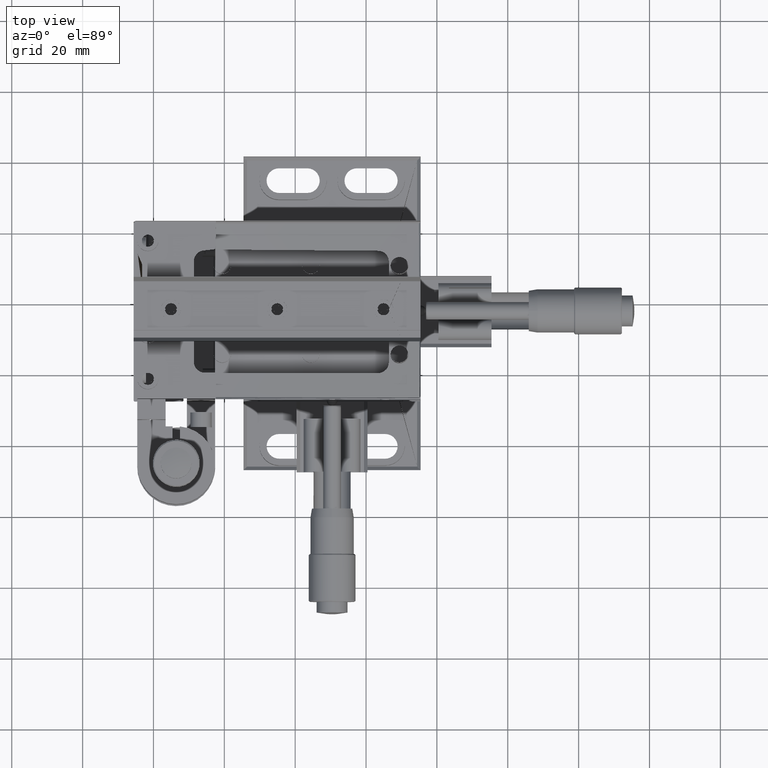
[diagram: clean part render]
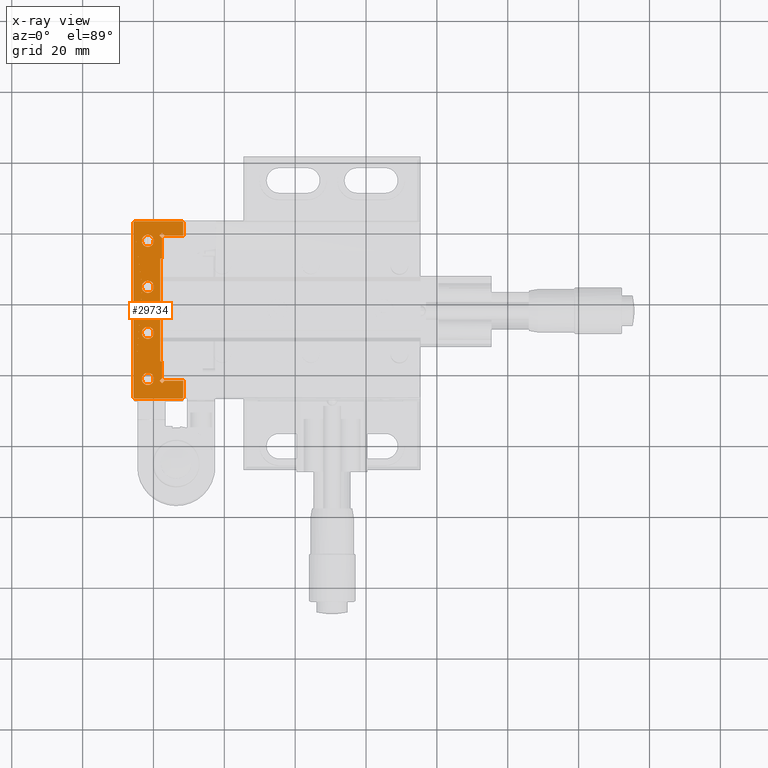
[diagram: x-ray — body ghosted, one internal face saturated and labeled with its STEP entity id]
A machine part, top view, then the same camera in x-ray: the body is ghosted and one INTERNAL B-rep face — a face not visible from any outside direction — is saturated and labeled: STEP entity #29734.
In plain terms, the highlighted face is a freeform B-spline surface patch.
Its self-contained STEP definition (entity closure, byte-faithful):
#48 = EDGE_CURVE ( 'NONE', #21936, #324, #6040, .T. ) ;
#93 = CARTESIAN_POINT ( 'NONE',  ( -40.19454005692469423, 4.996809397650840978, 36.82274179201690600 ) ) ;
#167 = CARTESIAN_POINT ( 'NONE',  ( -40.46406992888675092, -7.716246177610798007, 36.82274179201691311 ) ) ;
#223 = CARTESIAN_POINT ( 'NONE',  ( -40.30543664666586778, 2.876152325772507012, 36.82274179201689890 ) ) ;
#324 = VERTEX_POINT ( 'NONE', #31495 ) ;
#326 = CARTESIAN_POINT ( 'NONE',  ( -43.18076767883655265, -21.99928513604540115, 36.82274179201690600 ) ) ;
#349 = CARTESIAN_POINT ( 'NONE',  ( -40.30543664816160998, 15.87615232408935739, 36.82274179201690600 ) ) ;
#392 = CARTESIAN_POINT ( 'NONE',  ( -43.17501037392970176, -8.406309195851523697, 36.82274179201690600 ) ) ;
#399 = CARTESIAN_POINT ( 'NONE',  ( -37.34506541844488936, -22.97068709265689535, 36.82274179201690600 ) ) ;
#456 = CARTESIAN_POINT ( 'NONE',  ( -42.02441698899207267, 2.358397999597445338, 36.82274179201689890 ) ) ;
#459 = CARTESIAN_POINT ( 'NONE',  ( -39.88076734143195523, -22.11106267147139448, 36.82274179201690600 ) ) ;
#579 = CARTESIAN_POINT ( 'NONE',  ( -42.18676659028807308, 15.41145335363422575, 36.82274179201689890 ) ) ;
#618 = CARTESIAN_POINT ( 'NONE',  ( -41.29971903499627217, -7.315715178769266025, 36.82274179201691311 ) ) ;
#677 = CARTESIAN_POINT ( 'NONE',  ( -42.33901528756882016, 2.475159843126623738, 36.82274179201689890 ) ) ;
#802 = CARTESIAN_POINT ( 'NONE',  ( -42.69746543167129005, 15.71767077393287515, 36.82274179201690600 ) ) ;
#912 = CARTESIAN_POINT ( 'NONE',  ( -40.30266377896044361, -20.87245630221135073, 36.82274179201690600 ) ) ;
#1053 = CARTESIAN_POINT ( 'NONE',  ( -41.02977556036437790, -7.389987427549645105, 36.82274179201690600 ) ) ;
#1083 = CARTESIAN_POINT ( 'NONE',  ( -43.03000638582862791, 17.90267991985624718, 36.82274179201690600 ) ) ;
#1129 = CARTESIAN_POINT ( 'NONE',  ( -40.97476877140953633, -20.41002875829755325, 36.82274179201690600 ) ) ;
#1159 = B_SPLINE_CURVE_WITH_KNOTS ( 'NONE', 1,
 ( #40691, #30317 ),
 .UNSPECIFIED., .F., .F.,
 ( 2, 2 ),
 ( 0.000000000000000000, 1.000000000000000000 ),
 .UNSPECIFIED. ) ;
#1286 = ORIENTED_EDGE ( 'NONE', *, *, #10571, .T. ) ;
#1311 = CARTESIAN_POINT ( 'NONE',  ( -42.02781954161246603, 18.65664888257089515, 36.82274179201689890 ) ) ;
#1493 = VERTEX_POINT ( 'NONE', #40681 ) ;
#1527 = CARTESIAN_POINT ( 'NONE',  ( -41.29971903273891343, 18.68428482084535602, 36.82274179201689890 ) ) ;
#1564 = CARTESIAN_POINT ( 'NONE',  ( -45.08076767884040237, 22.50071742813409870, 36.82274179201690600 ) ) ;
#1572 = CARTESIAN_POINT ( 'NONE',  ( -42.69922335455444085, -20.71425978122463363, 36.82274179201689890 ) ) ;
#1743 = CARTESIAN_POINT ( 'NONE',  ( -42.43374646706872255, 18.47249484585060486, 36.82274179201690600 ) ) ;
#1792 = EDGE_LOOP ( 'NONE', ( #34054, #33832 ) ) ;
#1964 = CARTESIAN_POINT ( 'NONE',  ( -42.69922335191412088, 18.28574022105116370, 36.82274179201689890 ) ) ;
#2077 = CARTESIAN_POINT ( 'NONE',  ( -42.02441698900330636, -10.64160200039342108, 36.82274179201690600 ) ) ;
#2123 = CARTESIAN_POINT ( 'NONE',  ( -43.13197152199607842, 16.30297633096285637, 36.82274179201690600 ) ) ;
#2180 = CARTESIAN_POINT ( 'NONE',  ( -38.08076767884040237, -16.99928257186589775, 36.82274179201690600 ) ) ;
#2342 = CARTESIAN_POINT ( 'NONE',  ( -45.58076767884040237, 22.00071742813410225, 36.82274179201690600 ) ) ;
#2371 = CARTESIAN_POINT ( 'NONE',  ( -42.28994030096620804, 5.546757462433775210, 36.82274179201690600 ) ) ;
#2391 = CARTESIAN_POINT ( 'NONE',  ( -43.23825521565764518, 3.561430361331973327, 36.82274179201690600 ) ) ;
#2629 = CARTESIAN_POINT ( 'NONE',  ( -45.58076767884040237, 22.00071742813410225, 36.82274179201690600 ) ) ;
#2665 = ORIENTED_EDGE ( 'NONE', *, *, #28712, .T. ) ;
#2962 = CARTESIAN_POINT ( 'NONE',  ( -43.13197152105254872, -9.697023671158383706, 36.82274179201689890 ) ) ;
#3028 = CARTESIAN_POINT ( 'NONE',  ( -42.57314689484016412, 5.388900595007707572, 36.82274179201690600 ) ) ;
#3072 = B_SPLINE_CURVE_WITH_KNOTS ( 'NONE', 3,
 ( #8402, #25863, #5018, #19295 ),
 .UNSPECIFIED., .F., .F.,
 ( 4, 4 ),
 ( 0.000000000000000000, 1.000000000000000000 ),
 .UNSPECIFIED. ) ;
#3128 = VERTEX_POINT ( 'NONE', #38191 ) ;
#3159 = CARTESIAN_POINT ( 'NONE',  ( -41.13371581205726102, -23.65522428773503094, 36.82274179201690600 ) ) ;
#3189 = VERTEX_POINT ( 'NONE', #24405 ) ;
#3386 = CARTESIAN_POINT ( 'NONE',  ( -40.24950763000487797, -23.05954031638875179, 36.82274179201690600 ) ) ;
#3460 = CARTESIAN_POINT ( 'NONE',  ( -41.02977556142179338, -20.38998742718046842, 36.82274179201690600 ) ) ;
#3514 = CARTESIAN_POINT ( 'NONE',  ( -40.82368338836757005, 15.47754827673982447, 36.82274179201690600 ) ) ;
#3607 = CARTESIAN_POINT ( 'NONE',  ( -39.93656571152008183, 3.564376954244634188, 36.82274179201689890 ) ) ;
#3635 = B_SPLINE_CURVE_WITH_KNOTS ( 'NONE', 3,
 ( #42590, #39182, #35353, #5592 ),
 .UNSPECIFIED., .F., .F.,
 ( 4, 4 ),
 ( 0.000000000000000000, 1.000000000000000000 ),
 .UNSPECIFIED. ) ;
#3737 = CARTESIAN_POINT ( 'NONE',  ( -40.24950763211557359, 15.94045968096674137, 36.82274179201690600 ) ) ;
#3777 = CARTESIAN_POINT ( 'NONE',  ( -41.80814491364372287, -7.299356975915101131, 36.82274179201690600 ) ) ;
#3785 = CARTESIAN_POINT ( 'NONE',  ( -37.58076767884040237, -23.20638935305240125, 36.82274179201690600 ) ) ;
#3837 = CARTESIAN_POINT ( 'NONE',  ( -40.13152896942773395, 3.098744677808066506, 36.82274179201689890 ) ) ;
#3954 = CARTESIAN_POINT ( 'NONE',  ( -42.13175980019921241, 15.39141202233396477, 36.82274179201689890 ) ) ;
#3993 = EDGE_CURVE ( 'NONE', #29423, #11852, #25124, .T. ) ;
#3998 = CARTESIAN_POINT ( 'NONE',  ( -41.46707905799048177, -7.299245369841299791, 36.82274179201690600 ) ) ;
#4064 = CARTESIAN_POINT ( 'NONE',  ( -40.72778888763272676, 2.528929749662430115, 36.82274179201690600 ) ) ;
#4181 = CARTESIAN_POINT ( 'NONE',  ( -42.48261919083719107, 15.55207123558230720, 36.82274179201690600 ) ) ;
#4223 = CARTESIAN_POINT ( 'NONE',  ( -40.19454005688467646, -8.003190602410615639, 36.82274179201690600 ) ) ;
#4407 = CARTESIAN_POINT ( 'NONE',  ( -42.02441699123473029, 15.35839800019816082, 36.82274179201690600 ) ) ;
#4473 = CARTESIAN_POINT ( 'NONE',  ( -40.97476876816651270, 18.58997124045624361, 36.82274179201689890 ) ) ;
#4544 = B_SPLINE_CURVE_WITH_KNOTS ( 'NONE', 1,
 ( #8013, #4639 ),
 .UNSPECIFIED., .F., .F.,
 ( 2, 2 ),
 ( 0.000000000000000000, 1.000000000000000000 ),
 .UNSPECIFIED. ) ;
#4639 = CARTESIAN_POINT ( 'NONE',  ( -31.58076767884039526, 18.50071742813410225, 36.82274179201690600 ) ) ;
#4669 = CARTESIAN_POINT ( 'NONE',  ( -43.22496964541574016, -8.562952357654745938, 36.82274179201689890 ) ) ;
#4704 = CARTESIAN_POINT ( 'NONE',  ( -43.28076801579548771, 17.11248727201877529, 36.82274179201691311 ) ) ;
#4804 = ORIENTED_EDGE ( 'NONE', *, *, #35595, .F. ) ;
#4923 = CARTESIAN_POINT ( 'NONE',  ( -43.26482584070880222, 17.27707414411844411, 36.82274179201690600 ) ) ;
#4965 = CARTESIAN_POINT ( 'NONE',  ( -43.22496964571080014, -21.56295235871922600, 36.82274179201689890 ) ) ;
#5018 = CARTESIAN_POINT ( 'NONE',  ( -37.81646993923594380, -22.97068709265689535, 36.82274179201690600 ) ) ;
#5112 = CARTESIAN_POINT ( 'NONE',  ( -43.18076767883655265, 4.000714864529309800, 36.82274179201690600 ) ) ;
#5138 = CARTESIAN_POINT ( 'NONE',  ( -43.17501037313120094, 17.59369080629983983, 36.82274179201690600 ) ) ;
#5341 = CARTESIAN_POINT ( 'NONE',  ( -43.05388682593653726, 3.149815466933532981, 36.82274179201689179 ) ) ;
#5367 = CARTESIAN_POINT ( 'NONE',  ( -42.79688486403963310, 18.18890317167046078, 36.82274179201690600 ) ) ;
#5378 = CARTESIAN_POINT ( 'NONE',  ( -37.58076767884040237, -16.99928257186589775, 36.82274179201694864 ) ) ;
#5479 = CARTESIAN_POINT ( 'NONE',  ( -43.18076767883655265, -8.999285135470689312, 36.82274179201690600 ) ) ;
#5525 = CARTESIAN_POINT ( 'NONE',  ( -43.28076835558033508, 16.77677875208320657, 36.82274179201690600 ) ) ;
#5592 = CARTESIAN_POINT ( 'NONE',  ( -45.58076767884040237, -27.29928257186589846, 36.82274179201690600 ) ) ;
#5771 = CARTESIAN_POINT ( 'NONE',  ( -41.46707905798351135, 5.700754630158691327, 36.82274179201691311 ) ) ;
#5922 = CARTESIAN_POINT ( 'NONE',  ( -41.69445629984662105, -10.69933003634922031, 36.82274179201691311 ) ) ;
#6040 = B_SPLINE_CURVE_WITH_KNOTS ( 'NONE', 1,
 ( #2342, #29998 ),
 .UNSPECIFIED., .F., .F.,
 ( 2, 2 ),
 ( 0.9939516129032260894, 1.000000000000000000 ),
 .UNSPECIFIED. ) ;
#6061 = ORIENTED_EDGE ( 'NONE', *, *, #35967, .T. ) ;
#6097 = CARTESIAN_POINT ( 'NONE',  ( -36.87366089765389887, 18.50071742813410225, 36.82274179201690600 ) ) ;
#6149 = CARTESIAN_POINT ( 'NONE',  ( -40.05187133273120992, -9.751466191042567289, 36.82274179201690600 ) ) ;
#6375 = CARTESIAN_POINT ( 'NONE',  ( -40.46231200283220630, -10.28431562472484728, 36.82274179201689890 ) ) ;
#6490 = EDGE_CURVE ( 'NONE', #37728, #36287, #11409, .T. ) ;
#6655 = CARTESIAN_POINT ( 'NONE',  ( -40.67891616981588498, 5.449353360060719353, 36.82274179201690600 ) ) ;
#6790 = CARTESIAN_POINT ( 'NONE',  ( -42.13175979692896078, -23.60858797878658777, 36.82274179201689890 ) ) ;
#6794 = CARTESIAN_POINT ( 'NONE',  ( -45.38076767884039953, 22.50071742813409870, 36.82274179201690600 ) ) ;
#6821 = CARTESIAN_POINT ( 'NONE',  ( -37.58076767884040237, 12.00071742813409870, 36.82274179201690600 ) ) ;
#6913 = B_SPLINE_CURVE_WITH_KNOTS ( 'NONE', 1,
 ( #43721, #40076 ),
 .UNSPECIFIED., .F., .F.,
 ( 2, 2 ),
 ( 0.9779411764705889798, 1.000000000000000000 ),
 .UNSPECIFIED. ) ;
#7174 = CARTESIAN_POINT ( 'NONE',  ( -42.57314689476735481, -7.611099404973037608, 36.82274179201690600 ) ) ;
#7236 = CARTESIAN_POINT ( 'NONE',  ( -40.05187133223323315, -22.75146619002869386, 36.82274179201689890 ) ) ;
#7355 = CARTESIAN_POINT ( 'NONE',  ( -43.18076767883655265, -8.999285135470689312, 36.82274179201690600 ) ) ;
#7398 = CARTESIAN_POINT ( 'NONE',  ( -43.19308462145964000, -8.457328550999619665, 36.82274179201690600 ) ) ;
#7405 = VERTEX_POINT ( 'NONE', #1564 ) ;
#7406 = CARTESIAN_POINT ( 'NONE',  ( -37.58076767884040237, 17.79361064694759875, 36.82274179201690600 ) ) ;
#7573 = CARTESIAN_POINT ( 'NONE',  ( -40.87159505791517233, 15.45466713081073706, 36.82274179201690600 ) ) ;
#7615 = ORIENTED_EDGE ( 'NONE', *, *, #32928, .T. ) ;
#7692 = CARTESIAN_POINT ( 'NONE',  ( -43.28076767883269582, -21.99928770022489743, 36.82274179201690600 ) ) ;
#7718 = ORIENTED_EDGE ( 'NONE', *, *, #40855, .F. ) ;
#7791 = CARTESIAN_POINT ( 'NONE',  ( -41.13371581552155476, 15.34477571135149354, 36.82274179201690600 ) ) ;
#8013 = CARTESIAN_POINT ( 'NONE',  ( -31.58076767884039526, 22.30071742813409941, 36.82274179201690600 ) ) ;
#8043 = CARTESIAN_POINT ( 'NONE',  ( -42.43374646907859926, -7.527505155319134111, 36.82274179201690600 ) ) ;
#8296 = CARTESIAN_POINT ( 'NONE',  ( -43.19308462072688570, 17.54267145118662796, 36.82274179201690600 ) ) ;
#8402 = CARTESIAN_POINT ( 'NONE',  ( -38.28787446002699824, -22.49928257186589775, 36.82274179201694864 ) ) ;
#8501 = EDGE_CURVE ( 'NONE', #3128, #15025, #18224, .T. ) ;
#8520 = CARTESIAN_POINT ( 'NONE',  ( -40.67891616786999265, 18.44935335886450289, 36.82274179201690600 ) ) ;
#8562 = CARTESIAN_POINT ( 'NONE',  ( -41.46707905910478331, -20.29924536976831106, 36.82274179201690600 ) ) ;
#8723 = CARTESIAN_POINT ( 'NONE',  ( -43.13197152105243504, 3.302976328846476406, 36.82274179201690600 ) ) ;
#8739 = ORIENTED_EDGE ( 'NONE', *, *, #9813, .T. ) ;
#8749 = CARTESIAN_POINT ( 'NONE',  ( -41.02977555819784072, 18.61001257170264722, 36.82274179201690600 ) ) ;
#8856 = CARTESIAN_POINT ( 'NONE',  ( -40.87159505581427510, -10.54533286822725913, 36.82274179201690600 ) ) ;
#8872 = CARTESIAN_POINT ( 'NONE',  ( -38.28787446002699824, 18.50071742813410225, 36.82274179201690600 ) ) ;
#8941 = VERTEX_POINT ( 'NONE', #43049 ) ;
#9104 = CARTESIAN_POINT ( 'NONE',  ( -31.58076767884039526, -27.29928257186589846, 36.82274179201690600 ) ) ;
#9143 = CARTESIAN_POINT ( 'NONE',  ( -41.29971903498418584, 5.684284821230718876, 36.82274179201690600 ) ) ;
#9187 = CARTESIAN_POINT ( 'NONE',  ( -45.08076767884040237, -27.49928257186589775, 36.82274179201690600 ) ) ;
#9222 = ORIENTED_EDGE ( 'NONE', *, *, #11362, .T. ) ;
#9301 = CARTESIAN_POINT ( 'NONE',  ( -39.98076767884430183, 4.000714862230425162, 36.82274179201690600 ) ) ;
#9308 = CARTESIAN_POINT ( 'NONE',  ( -43.10709624249707161, -9.750169693812633653, 36.82274179201689890 ) ) ;
#9370 = CARTESIAN_POINT ( 'NONE',  ( -40.97476877031925113, 5.589971241282266412, 36.82274179201690600 ) ) ;
#9432 = B_SPLINE_CURVE_WITH_KNOTS ( 'NONE', 1,
 ( #27488, #23406 ),
 .UNSPECIFIED., .F., .F.,
 ( 2, 2 ),
 ( 0.006048387096774160421, 0.9939516129032260894 ),
 .UNSPECIFIED. ) ;
#9471 = B_SPLINE_CURVE_WITH_KNOTS ( 'NONE', 1,
 ( #30295, #10312 ),
 .UNSPECIFIED., .F., .F.,
 ( 2, 2 ),
 ( 0.000000000000000000, 1.000000000000000000 ),
 .UNSPECIFIED. ) ;
#9523 = CARTESIAN_POINT ( 'NONE',  ( -42.73659306122866042, -10.24720942165079052, 36.82274179201690600 ) ) ;
#9746 = CARTESIAN_POINT ( 'NONE',  ( -40.72778888759541616, -10.47107025032269689, 36.82274179201689890 ) ) ;
#9813 = EDGE_CURVE ( 'NONE', #7405, #8941, #29567, .T. ) ;
#9819 = CARTESIAN_POINT ( 'NONE',  ( -43.28076801594657042, 4.112487269746423202, 36.82274179201690600 ) ) ;
#9943 = CARTESIAN_POINT ( 'NONE',  ( -40.58838846082009155, -23.38747599975391012, 36.82274179201690600 ) ) ;
#10036 = B_SPLINE_CURVE_WITH_KNOTS ( 'NONE', 3,
 ( #3785, #399, #10785, #21672 ),
 .UNSPECIFIED., .F., .F.,
 ( 4, 4 ),
 ( 0.000000000000000000, 1.000000000000000000 ),
 .UNSPECIFIED. ) ;
#10120 = B_SPLINE_CURVE_WITH_KNOTS ( 'NONE', 3,
 ( #16520, #30385, #41220, #6794 ),
 .UNSPECIFIED., .F., .F.,
 ( 4, 4 ),
 ( 0.000000000000000000, 1.000000000000000000 ),
 .UNSPECIFIED. ) ;
#10221 = CARTESIAN_POINT ( 'NONE',  ( -45.58076767884040237, -26.99928257186589775, 36.82274179201690600 ) ) ;
#10302 = EDGE_CURVE ( 'NONE', #28309, #16935, #32753, .T. ) ;
#10312 = CARTESIAN_POINT ( 'NONE',  ( -31.58076767884039526, -22.49928257186589775, 36.82274179201690600 ) ) ;
#10333 = VERTEX_POINT ( 'NONE', #32313 ) ;
#10395 = CARTESIAN_POINT ( 'NONE',  ( -39.89670951589095438, -22.27564954384733298, 36.82274179201690600 ) ) ;
#10466 = ORIENTED_EDGE ( 'NONE', *, *, #24173, .T. ) ;
#10517 = CARTESIAN_POINT ( 'NONE',  ( -39.88076734165864679, 16.88893732511125378, 36.82274179201690600 ) ) ;
#10547 = VERTEX_POINT ( 'NONE', #21397 ) ;
#10571 = EDGE_CURVE ( 'NONE', #25780, #44548, #42985, .T. ) ;
#10618 = CARTESIAN_POINT ( 'NONE',  ( -40.87159505582287267, 2.454667131769446620, 36.82274179201689890 ) ) ;
#10646 = FACE_BOUND ( 'NONE', #17249, .T. ) ;
#10779 = CARTESIAN_POINT ( 'NONE',  ( -40.42494229766007408, -7.751365983414896910, 36.82274179201690600 ) ) ;
#10785 = CARTESIAN_POINT ( 'NONE',  ( -37.10936315804936214, -22.73498483226139655, 36.82274179201690600 ) ) ;
#10837 = CARTESIAN_POINT ( 'NONE',  ( -39.98652498281136047, 3.407733792170717813, 36.82274179201690600 ) ) ;
#10840 = CARTESIAN_POINT ( 'NONE',  ( -39.93656571122501475, -22.43562304465515922, 36.82274179201689179 ) ) ;
#10939 = CARTESIAN_POINT ( 'NONE',  ( -40.30266377820515089, 5.127543696941629925, 36.82274179201689890 ) ) ;
#11046 = CARTESIAN_POINT ( 'NONE',  ( -38.05217219963147102, 18.26501516773859635, 36.82274179201690600 ) ) ;
#11085 = CARTESIAN_POINT ( 'NONE',  ( -40.67891617074077715, -20.55064663936571989, 36.82274179201690600 ) ) ;
#11188 = CARTESIAN_POINT ( 'NONE',  ( -40.36465049243884096, 15.81252142336836819, 36.82274179201690600 ) ) ;
#11305 = CARTESIAN_POINT ( 'NONE',  ( -40.05443911675418889, -21.24840570920083849, 36.82274179201690600 ) ) ;
#11331 = B_SPLINE_CURVE_WITH_KNOTS ( 'NONE', 1,
 ( #2180, #26874 ),
 .UNSPECIFIED., .F., .F.,
 ( 2, 2 ),
 ( 0.000000000000000000, 1.000000000000000000 ),
 .UNSPECIFIED. ) ;
#11362 = EDGE_CURVE ( 'NONE', #10547, #43245, #4544, .T. ) ;
#11409 = B_SPLINE_CURVE_WITH_KNOTS ( 'NONE', 3,
 ( #30381, #459, #10395, #10840, #20398, #14239, #7236, #37569, #3386, #13789, #13564, #24693, #21287, #9943, #38033, #23789, #24470, #3159, #16967, #28101, #14018, #38488, #6790, #17647, #13341, #17194, #20846, #31050, #21068, #41907, #27649, #35107, #24241, #34434, #27191, #41449, #17420 ),
 .UNSPECIFIED., .F., .F.,
 ( 4, 1, 2, 2, 1, 1, 2, 2, 1, 2, 2, 2, 1, 2, 2, 1, 2, 2, 1, 2, 2, 4 ),
 ( 0.000000000000000000, 0.06249999999999428235, 0.09374999999999200639, 0.1249999999999897304, 0.1874999999999869549, 0.2187499999999863720, 0.2343749999999848455, 0.2499999999999833467, 0.3124999999999786837, 0.3437499999999768518, 0.3749999999999751310, 0.4999999999999777955, 0.5624999999999810152, 0.5937499999999825695, 0.6249999999999840128, 0.6874999999999875655, 0.7187499999999905631, 0.7499999999999934497, 0.8124999999999978906, 0.8437499999999983347, 0.8749999999999986677, 1.000000000000000000 ),
 .UNSPECIFIED. ) ;
#11529 = CARTESIAN_POINT ( 'NONE',  ( -39.92328014310441375, -21.56000576363398125, 36.82274179201690600 ) ) ;
#11852 = VERTEX_POINT ( 'NONE', #40508 ) ;
#11970 = CARTESIAN_POINT ( 'NONE',  ( -42.57314689574013045, -20.61109940563573772, 36.82274179201690600 ) ) ;
#12053 = EDGE_CURVE ( 'NONE', #37659, #3189, #30966, .T. ) ;
#12124 = CARTESIAN_POINT ( 'NONE',  ( -42.69746542996209371, 2.717670772428432358, 36.82274179201689179 ) ) ;
#12143 = CARTESIAN_POINT ( 'NONE',  ( -45.38076767884039953, -27.49928257186589775, 36.82274179201690600 ) ) ;
#12148 = CARTESIAN_POINT ( 'NONE',  ( -42.57314689286516085, 18.38890059638965369, 36.82274179201690600 ) ) ;
#12260 = CARTESIAN_POINT ( 'NONE',  ( -39.98652498281634138, -9.592266207842596870, 36.82274179201690600 ) ) ;
#12480 = CARTESIAN_POINT ( 'NONE',  ( -40.36465049082983825, -10.18747857498560450, 36.82274179201689890 ) ) ;
#12510 = CARTESIAN_POINT ( 'NONE',  ( -36.87366089765389887, 18.50071742813410225, 36.82274179201690600 ) ) ;
#12547 = CARTESIAN_POINT ( 'NONE',  ( -42.33785197048018034, 5.523876316474708226, 36.82274179201690600 ) ) ;
#12907 = CARTESIAN_POINT ( 'NONE',  ( -43.18076767883655265, 17.00071486567874857, 36.82274179201690600 ) ) ;
#13147 = CARTESIAN_POINT ( 'NONE',  ( -39.88076734150755698, -9.111062672614931301, 36.82274179201689179 ) ) ;
#13192 = EDGE_CURVE ( 'NONE', #19203, #44336, #42168, .T. ) ;
#13216 = ORIENTED_EDGE ( 'NONE', *, *, #19818, .T. ) ;
#13236 = CARTESIAN_POINT ( 'NONE',  ( -38.08076767884040237, 12.00071742813409870, 36.82274179201690600 ) ) ;
#13341 = CARTESIAN_POINT ( 'NONE',  ( -42.33901528654119772, -23.52484015737798728, 36.82274179201690600 ) ) ;
#13430 = EDGE_CURVE ( 'NONE', #11852, #29423, #20515, .T. ) ;
#13439 = CARTESIAN_POINT ( 'NONE',  ( -43.26482584108239848, 4.277074141887577952, 36.82274179201689890 ) ) ;
#13564 = CARTESIAN_POINT ( 'NONE',  ( -40.34391526373725867, -23.16593500699836028, 36.82274179201690600 ) ) ;
#13769 = CARTESIAN_POINT ( 'NONE',  ( -37.58076767884040237, 17.79361064694759875, 36.82274179201690600 ) ) ;
#13783 = CARTESIAN_POINT ( 'NONE',  ( -40.24950763072067872, 2.940459682702496913, 36.82274179201690600 ) ) ;
#13789 = CARTESIAN_POINT ( 'NONE',  ( -40.30543664590615549, -23.12384767335962721, 36.82274179201689890 ) ) ;
#13793 = CARTESIAN_POINT ( 'NONE',  ( -39.98076767884430183, -21.99928513719485323, 36.82274179201690600 ) ) ;
#13879 = CARTESIAN_POINT ( 'NONE',  ( -40.54827946565749386, 5.352634617640788406, 36.82274179201690600 ) ) ;
#13956 = CARTESIAN_POINT ( 'NONE',  ( -40.54827946563538177, -7.647365382364641029, 36.82274179201690600 ) ) ;
#14015 = CARTESIAN_POINT ( 'NONE',  ( -40.58838846184183069, 2.612523999505222516, 36.82274179201690600 ) ) ;
#14018 = CARTESIAN_POINT ( 'NONE',  ( -41.86181632192365498, -23.68286022757990139, 36.82274179201690600 ) ) ;
#14130 = EDGE_CURVE ( 'NONE', #8941, #10547, #40083, .T. ) ;
#14135 = CARTESIAN_POINT ( 'NONE',  ( -40.58838846365538444, 15.61252399819315251, 36.82274179201689890 ) ) ;
#14157 = ORIENTED_EDGE ( 'NONE', *, *, #10302, .F. ) ;
#14178 = CARTESIAN_POINT ( 'NONE',  ( -43.10966402384880070, -8.247109212930498146, 36.82274179201689890 ) ) ;
#14236 = CARTESIAN_POINT ( 'NONE',  ( -42.13175979800909232, 2.391412021588351422, 36.82274179201690600 ) ) ;
#14239 = CARTESIAN_POINT ( 'NONE',  ( -39.98652498240998909, -22.59226620675457298, 36.82274179201690600 ) ) ;
#14397 = CARTESIAN_POINT ( 'NONE',  ( -42.79688486564278094, -7.811096829971092781, 36.82274179201690600 ) ) ;
#14616 = CARTESIAN_POINT ( 'NONE',  ( -39.92328014280739978, -8.560005764796267513, 36.82274179201689890 ) ) ;
#14666 = ORIENTED_EDGE ( 'NONE', *, *, #38569, .T. ) ;
#14690 = CARTESIAN_POINT ( 'NONE',  ( -40.19454005758651505, -21.00319060144202155, 36.82274179201690600 ) ) ;
#14865 = CARTESIAN_POINT ( 'NONE',  ( -39.98076767884430183, 17.00071486108099705, 36.82274179201690600 ) ) ;
#15012 = CARTESIAN_POINT ( 'NONE',  ( -37.58076767884040237, -21.79217579067930188, 36.82274179201694864 ) ) ;
#15025 = VERTEX_POINT ( 'NONE', #8872 ) ;
#15063 = CARTESIAN_POINT ( 'NONE',  ( -37.58076767884040237, -23.20638935305240125, 36.82274179201690600 ) ) ;
#15186 = CARTESIAN_POINT ( 'NONE',  ( -31.58076767884039526, 18.50071742813410225, 36.82274179201690600 ) ) ;
#15200 = B_SPLINE_CURVE_WITH_KNOTS ( 'NONE', 1,
 ( #42297, #32098 ),
 .UNSPECIFIED., .F., .F.,
 ( 2, 2 ),
 ( 0.000000000000000000, 1.000000000000000000 ),
 .UNSPECIFIED. ) ;
#15279 = CARTESIAN_POINT ( 'NONE',  ( -42.73659306122271317, 2.752790578329899596, 36.82274179201689890 ) ) ;
#15308 = CARTESIAN_POINT ( 'NONE',  ( -41.13711836704496960, 18.64302659375138660, 36.82274179201690600 ) ) ;
#15323 = CARTESIAN_POINT ( 'NONE',  ( -31.58076767884039526, -27.29928257186589846, 36.82274179201690600 ) ) ;
#15354 = CARTESIAN_POINT ( 'NONE',  ( -43.19308462182611663, -21.45732855205968193, 36.82274179201689890 ) ) ;
#15461 = CARTESIAN_POINT ( 'NONE',  ( -43.23825521625183654, 16.56143036349874720, 36.82274179201690600 ) ) ;
#15486 = ORIENTED_EDGE ( 'NONE', *, *, #19449, .T. ) ;
#15504 = CARTESIAN_POINT ( 'NONE',  ( -43.10709624250711158, 3.249830306220859555, 36.82274179201689890 ) ) ;
#15529 = CARTESIAN_POINT ( 'NONE',  ( -41.80814491132290556, 18.70064302439847381, 36.82274179201690600 ) ) ;
#15595 = CARTESIAN_POINT ( 'NONE',  ( -31.78076767884040166, 22.50071742813409870, 36.82274179201690600 ) ) ;
#15749 = CARTESIAN_POINT ( 'NONE',  ( -40.19454005560141496, 17.99680939578892946, 36.82274179201689890 ) ) ;
#15770 = B_SPLINE_CURVE_WITH_KNOTS ( 'NONE', 1,
 ( #41684, #27651 ),
 .UNSPECIFIED., .F., .F.,
 ( 2, 2 ),
 ( 0.000000000000000000, 0.006048387096774160421 ),
 .UNSPECIFIED. ) ;
#15850 = CARTESIAN_POINT ( 'NONE',  ( -38.28787446002699824, -22.49928257186589775, 36.82274179201694864 ) ) ;
#15933 = CARTESIAN_POINT ( 'NONE',  ( -43.17501037393056151, 4.593690804163490959, 36.82274179201690600 ) ) ;
#15950 = B_SPLINE_CURVE_WITH_KNOTS ( 'NONE', 1,
 ( #32576, #15323 ),
 .UNSPECIFIED., .F., .F.,
 ( 2, 2 ),
 ( 0.000000000000000000, 1.000000000000000000 ),
 .UNSPECIFIED. ) ;
#16196 = ORIENTED_EDGE ( 'NONE', *, *, #37654, .T. ) ;
#16307 = CARTESIAN_POINT ( 'NONE',  ( -39.88076767884820839, -8.999287703673251926, 36.82274179201690600 ) ) ;
#16378 = CARTESIAN_POINT ( 'NONE',  ( -43.22496964541574016, 4.437047642391142688, 36.82274179201689890 ) ) ;
#16520 = CARTESIAN_POINT ( 'NONE',  ( -45.58076767884040237, 22.30071742813409941, 36.82274179201690600 ) ) ;
#16740 = EDGE_CURVE ( 'NONE', #7405, #33706, #6913, .T. ) ;
#16935 = VERTEX_POINT ( 'NONE', #23261 ) ;
#16967 = CARTESIAN_POINT ( 'NONE',  ( -41.35339044257314356, -23.69921843012262386, 36.82274179201689890 ) ) ;
#17189 = CARTESIAN_POINT ( 'NONE',  ( -39.89670951607784843, 3.724350455028668794, 36.82274179201690600 ) ) ;
#17194 = CARTESIAN_POINT ( 'NONE',  ( -42.48261918795739689, -23.44792876622151923, 36.82274179201690600 ) ) ;
#17249 = EDGE_LOOP ( 'NONE', ( #40419, #44738 ) ) ;
#17272 = CARTESIAN_POINT ( 'NONE',  ( -40.82252007204456135, -20.47373524838419101, 36.82274179201689179 ) ) ;
#17291 = CARTESIAN_POINT ( 'NONE',  ( -40.46406992890079835, 5.283753822392641020, 36.82274179201689890 ) ) ;
#17417 = CARTESIAN_POINT ( 'NONE',  ( -40.34391526452576215, 2.834064992162248053, 36.82274179201690600 ) ) ;
#17420 = CARTESIAN_POINT ( 'NONE',  ( -43.18076767883655265, -21.99928513604540115, 36.82274179201690600 ) ) ;
#17642 = CARTESIAN_POINT ( 'NONE',  ( -41.69445629983840007, 2.300669963644170313, 36.82274179201690600 ) ) ;
#17647 = CARTESIAN_POINT ( 'NONE',  ( -42.18676658704743687, -23.58854664760227493, 36.82274179201689890 ) ) ;
#17767 = CARTESIAN_POINT ( 'NONE',  ( -39.96845073607483556, 16.45875314524465693, 36.82274179201689890 ) ) ;
#17818 = CARTESIAN_POINT ( 'NONE',  ( -37.58076767884040237, 12.00071742813409870, 36.82274179201690600 ) ) ;
#17851 = CARTESIAN_POINT ( 'NONE',  ( -37.81646993923594380, 18.02931290734309755, 36.82274179201690600 ) ) ;
#17871 = CARTESIAN_POINT ( 'NONE',  ( -39.88076767884820839, 4.000712296326748074, 36.82274179201690600 ) ) ;
#17929 = CARTESIAN_POINT ( 'NONE',  ( -31.58076767884039526, 18.50071742813410225, 36.82274179201690600 ) ) ;
#17993 = CARTESIAN_POINT ( 'NONE',  ( -42.61325589495348254, 15.64878997840753172, 36.82274179201690600 ) ) ;
#18029 = CARTESIAN_POINT ( 'NONE',  ( -40.82252007102815128, -7.473735248880164939, 36.82274179201689890 ) ) ;
#18107 = CARTESIAN_POINT ( 'NONE',  ( -42.91202772644119534, -20.93903508828892157, 36.82274179201690600 ) ) ;
#18224 = B_SPLINE_CURVE_WITH_KNOTS ( 'NONE', 3,
 ( #34191, #31858, #29132, #38859 ),
 .UNSPECIFIED., .F., .F.,
 ( 4, 4 ),
 ( 0.000000000000000000, 1.000000000000000000 ),
 .UNSPECIFIED. ) ;
#18280 = CARTESIAN_POINT ( 'NONE',  ( -39.92328014221341448, 17.43999423305197638, 36.82274179201691311 ) ) ;
#18327 = CARTESIAN_POINT ( 'NONE',  ( -41.13711837031284091, -20.35697340534987632, 36.82274179201690600 ) ) ;
#18510 = CARTESIAN_POINT ( 'NONE',  ( -43.22496964482581916, 17.43704764457802980, 36.82274179201689890 ) ) ;
#18597 = ORIENTED_EDGE ( 'NONE', *, *, #13192, .T. ) ;
#18611 = CARTESIAN_POINT ( 'NONE',  ( -37.81646993923591538, -22.02787805107482910, 36.82274179201690600 ) ) ;
#18739 = CARTESIAN_POINT ( 'NONE',  ( -42.91202772429100065, 18.06096491444730034, 36.82274179201689890 ) ) ;
#18782 = CARTESIAN_POINT ( 'NONE',  ( -43.17501037433407163, -21.40630919692019773, 36.82274179201690600 ) ) ;
#19099 = VERTEX_POINT ( 'NONE', #12510 ) ;
#19122 = CARTESIAN_POINT ( 'NONE',  ( -42.73659306293200899, 15.75279057992626619, 36.82274179201690600 ) ) ;
#19203 = VERTEX_POINT ( 'NONE', #24747 ) ;
#19295 = CARTESIAN_POINT ( 'NONE',  ( -37.58076767884040237, -23.20638935305240125, 36.82274179201690600 ) ) ;
#19306 = CARTESIAN_POINT ( 'NONE',  ( -39.89670951607785554, -9.275649544975692606, 36.82274179201689890 ) ) ;
#19449 = EDGE_CURVE ( 'NONE', #10333, #26847, #15770, .T. ) ;
#19526 = CARTESIAN_POINT ( 'NONE',  ( -39.96845073534205284, -9.541246852596971806, 36.82274179201690600 ) ) ;
#19555 = CARTESIAN_POINT ( 'NONE',  ( -31.78076767884040166, -27.49928257186589775, 36.82274179201690600 ) ) ;
#19595 = CARTESIAN_POINT ( 'NONE',  ( -41.02977556035832407, 5.610012572450328250, 36.82274179201691311 ) ) ;
#19747 = CARTESIAN_POINT ( 'NONE',  ( -42.18676658814956681, -10.58854664717634364, 36.82274179201690600 ) ) ;
#19818 = EDGE_CURVE ( 'NONE', #41963, #27474, #15200, .T. ) ;
#19970 = CARTESIAN_POINT ( 'NONE',  ( -40.24950763070781079, -10.05954031726274778, 36.82274179201690600 ) ) ;
#20047 = CARTESIAN_POINT ( 'NONE',  ( -42.85609870979069314, 5.125272269392317170, 36.82274179201689890 ) ) ;
#20173 = VERTEX_POINT ( 'NONE', #22007 ) ;
#20374 = CARTESIAN_POINT ( 'NONE',  ( -37.10936315804939767, 18.73641968852962947, 36.82274179201690600 ) ) ;
#20398 = CARTESIAN_POINT ( 'NONE',  ( -39.96845073497553358, -22.54124685151191088, 36.82274179201690600 ) ) ;
#20515 = B_SPLINE_CURVE_WITH_KNOTS ( 'NONE', 3,
 ( #30468, #9819, #13439, #16378, #23661, #15933, #30250, #37221, #34075, #20047, #44276, #30024, #40410, #3028, #43614, #12547, #2371, #40186, #26611, #5771, #9143, #22981, #19595, #9370, #23204, #6655, #13879, #17291, #37899, #10939, #93, #20717, #27739, #31144, #30921, #41992, #31587 ),
 .UNSPECIFIED., .F., .F.,
 ( 4, 1, 2, 2, 1, 1, 2, 2, 1, 2, 2, 2, 1, 2, 2, 1, 2, 2, 1, 2, 2, 4 ),
 ( 0.000000000000000000, 0.06249999999999841793, 0.09374999999999787670, 0.1249999999999973355, 0.1874999999999962530, 0.2187499999999944489, 0.2343749999999945599, 0.2499999999999946709, 0.3124999999999944489, 0.3437499999999943934, 0.3749999999999942824, 0.4999999999999938938, 0.5624999999999937828, 0.5937499999999917843, 0.6249999999999896749, 0.6874999999999892308, 0.7187499999999906741, 0.7499999999999921174, 0.8124999999999923395, 0.8437499999999936717, 0.8749999999999948930, 1.000000000000000000 ),
 .UNSPECIFIED. ) ;
#20598 = CARTESIAN_POINT ( 'NONE',  ( -37.58076767884040237, 19.20782420932070167, 36.82274179201690600 ) ) ;
#20717 = CARTESIAN_POINT ( 'NONE',  ( -40.10764853288869602, 4.851609128862652831, 36.82274179201690600 ) ) ;
#20748 = CARTESIAN_POINT ( 'NONE',  ( -39.98652498362805119, 16.40773378999026733, 36.82274179201690600 ) ) ;
#20846 = CARTESIAN_POINT ( 'NONE',  ( -42.61325589225727128, -23.35121002366680187, 36.82274179201690600 ) ) ;
#20870 = CARTESIAN_POINT ( 'NONE',  ( -31.58076767884039526, -22.49928257186589775, 36.82274179201690600 ) ) ;
#21010 = CARTESIAN_POINT ( 'NONE',  ( -43.28076801594657042, -8.887512730286935891, 36.82274179201690600 ) ) ;
#21068 = CARTESIAN_POINT ( 'NONE',  ( -42.73659306036952188, -23.24720942245878419, 36.82274179201690600 ) ) ;
#21227 = CARTESIAN_POINT ( 'NONE',  ( -42.81762009193908369, -7.832640397070133709, 36.82274179201690600 ) ) ;
#21259 = EDGE_CURVE ( 'NONE', #36287, #37728, #35668, .T. ) ;
#21284 = CARTESIAN_POINT ( 'NONE',  ( -40.46231200285934904, 2.715684375264358241, 36.82274179201690600 ) ) ;
#21287 = CARTESIAN_POINT ( 'NONE',  ( -40.46231200194295496, -23.28431562393947374, 36.82274179201690600 ) ) ;
#21309 = CARTESIAN_POINT ( 'NONE',  ( -45.58076767884040237, 22.50071742813409870, 36.82274179201690600 ) ) ;
#21397 = CARTESIAN_POINT ( 'NONE',  ( -31.58076767884039526, 22.30071742813409941, 36.82274179201690600 ) ) ;
#21408 = EDGE_LOOP ( 'NONE', ( #7615, #43209, #31653, #14666, #41612, #33448, #1286, #30327, #18597, #43753, #15486, #32436, #39215, #16196, #32302, #8739, #26178, #9222, #7718, #28934, #31868, #10466, #42047, #6061, #13216, #2665 ) ) ;
#21412 = CARTESIAN_POINT ( 'NONE',  ( -41.86181632535037522, 15.31713977299600415, 36.82274179201692732 ) ) ;
#21457 = CARTESIAN_POINT ( 'NONE',  ( -40.97476877032737974, -7.410028758715720976, 36.82274179201690600 ) ) ;
#21672 = CARTESIAN_POINT ( 'NONE',  ( -36.87366089765389887, -22.49928257186589775, 36.82274179201690600 ) ) ;
#21748 = CARTESIAN_POINT ( 'NONE',  ( -43.10966402435049361, -21.24710921398259345, 36.82274179201689890 ) ) ;
#21883 = CARTESIAN_POINT ( 'NONE',  ( -42.91202772573338109, -7.939035087364691101, 36.82274179201690600 ) ) ;
#21936 = VERTEX_POINT ( 'NONE', #2629 ) ;
#21974 = CARTESIAN_POINT ( 'NONE',  ( -31.71410101217373523, 22.43405076146743227, 36.82274179201690600 ) ) ;
#22007 = CARTESIAN_POINT ( 'NONE',  ( -37.58076767884040237, -16.99928257186589775, 36.82274179201694864 ) ) ;
#22293 = CARTESIAN_POINT ( 'NONE',  ( -43.05388682702796643, 16.14981546883428720, 36.82274179201690600 ) ) ;
#22361 = CARTESIAN_POINT ( 'NONE',  ( -40.46406992717233209, 18.28375382089422629, 36.82274179201689890 ) ) ;
#22413 = CARTESIAN_POINT ( 'NONE',  ( -45.38076767884039953, -27.49928257186589775, 36.82274179201690600 ) ) ;
#22584 = CARTESIAN_POINT ( 'NONE',  ( -40.54827946383958448, 18.35263461626290749, 36.82274179201689890 ) ) ;
#22697 = CARTESIAN_POINT ( 'NONE',  ( -42.96699530195635219, -9.995384802229111187, 36.82274179201690600 ) ) ;
#22823 = EDGE_CURVE ( 'NONE', #44336, #10333, #3635, .T. ) ;
#22857 = CARTESIAN_POINT ( 'NONE',  ( -39.98076767884430183, -21.99928513719485323, 36.82274179201690600 ) ) ;
#22918 = CARTESIAN_POINT ( 'NONE',  ( -42.33901528751820820, -10.52484015689772079, 36.82274179201690600 ) ) ;
#22981 = CARTESIAN_POINT ( 'NONE',  ( -41.13711836924115062, 5.643026594355456282, 36.82274179201690600 ) ) ;
#23055 = EDGE_CURVE ( 'NONE', #34200, #31521, #9471, .T. ) ;
#23164 = CARTESIAN_POINT ( 'NONE',  ( -31.64743434550706169, -27.36594923853256134, 36.82274179201690600 ) ) ;
#23204 = CARTESIAN_POINT ( 'NONE',  ( -40.82252007104423086, 5.526264751123776797, 36.82274179201690600 ) ) ;
#23261 = CARTESIAN_POINT ( 'NONE',  ( -39.98076767884430183, -8.999285137769579279, 36.82274179201690600 ) ) ;
#23390 = CARTESIAN_POINT ( 'NONE',  ( -31.71410101217373523, -27.43261590519923132, 36.82274179201690600 ) ) ;
#23406 = CARTESIAN_POINT ( 'NONE',  ( -45.58076767884040237, 22.00071742813410225, 36.82274179201690600 ) ) ;
#23661 = CARTESIAN_POINT ( 'NONE',  ( -43.19308462145964711, 4.542671449029605846, 36.82274179201690600 ) ) ;
#23739 = VERTEX_POINT ( 'NONE', #6821 ) ;
#23789 = CARTESIAN_POINT ( 'NONE',  ( -40.82368338526811868, -23.52245172170447773, 36.82274179201689890 ) ) ;
#24140 = CARTESIAN_POINT ( 'NONE',  ( -40.72778888957297028, 15.52892974853247665, 36.82274179201690600 ) ) ;
#24173 = EDGE_CURVE ( 'NONE', #15025, #41701, #28845, .T. ) ;
#24192 = CARTESIAN_POINT ( 'NONE',  ( -37.58076767884040237, 17.79361064694759875, 36.82274179201690600 ) ) ;
#24241 = CARTESIAN_POINT ( 'NONE',  ( -43.10709624201599155, -22.75016969479863960, 36.82274179201690600 ) ) ;
#24405 = CARTESIAN_POINT ( 'NONE',  ( -39.98076767884430183, 17.00071486108099705, 36.82274179201690600 ) ) ;
#24408 = CARTESIAN_POINT ( 'NONE',  ( -42.28994030095839207, -7.453242537566248771, 36.82274179201690600 ) ) ;
#24464 = CARTESIAN_POINT ( 'NONE',  ( -41.13371581328868842, 2.344775711957092224, 36.82274179201690600 ) ) ;
#24470 = CARTESIAN_POINT ( 'NONE',  ( -40.87159505480526178, -23.54533286775236789, 36.82274179201689890 ) ) ;
#24493 = CARTESIAN_POINT ( 'NONE',  ( -31.58076767884039526, -27.49928257186589775, 36.82274179201690600 ) ) ;
#24567 = CARTESIAN_POINT ( 'NONE',  ( -31.58076767884039526, -27.29928257186589846, 36.82274179201690600 ) ) ;
#24629 = CARTESIAN_POINT ( 'NONE',  ( -41.13711836925062926, -7.356973405644516184, 36.82274179201689890 ) ) ;
#24688 = B_SPLINE_CURVE_WITH_KNOTS ( 'NONE', 3,
 ( #42247, #10517, #42472, #35444, #17767, #20748, #38385, #38612, #3737, #349, #31839, #11188, #25039, #14135, #24140, #3514, #7573, #7791, #27997, #31619, #21412, #4407, #3954, #579, #35229, #4181, #17993, #802, #19122, #43366, #33167, #22293, #29114, #2123, #15461, #5525, #42684 ),
 .UNSPECIFIED., .F., .F.,
 ( 4, 1, 2, 2, 1, 1, 2, 2, 1, 2, 2, 2, 1, 2, 2, 1, 2, 2, 1, 2, 2, 4 ),
 ( 0.000000000000000000, 0.06249999999999969469, 0.09374999999999993061, 0.1250000000000001665, 0.1875000000000006384, 0.2187500000000019151, 0.2343750000000018596, 0.2500000000000017764, 0.3125000000000000555, 0.3437499999999981126, 0.3749999999999961142, 0.4999999999999882871, 0.5624999999999843459, 0.5937499999999844569, 0.6249999999999845679, 0.6874999999999845679, 0.7187499999999847899, 0.7499999999999851230, 0.8124999999999871214, 0.8437499999999881206, 0.8749999999999891198, 1.000000000000000000 ),
 .UNSPECIFIED. ) ;
#24693 = CARTESIAN_POINT ( 'NONE',  ( -40.36465049003142269, -23.18747857417050895, 36.82274179201690600 ) ) ;
#24714 = CARTESIAN_POINT ( 'NONE',  ( -45.58076767884040237, -27.49928257186589775, 36.82274179201690600 ) ) ;
#24747 = CARTESIAN_POINT ( 'NONE',  ( -45.08076767884040237, -27.49928257186589775, 36.82274179201690600 ) ) ;
#24930 = CARTESIAN_POINT ( 'NONE',  ( -40.54827946652874004, -20.64736538168952151, 36.82274179201690600 ) ) ;
#25035 = B_SPLINE_CURVE_WITH_KNOTS ( 'NONE', 1,
 ( #5378, #25336 ),
 .UNSPECIFIED., .F., .F.,
 ( 2, 2 ),
 ( 0.000000000000000000, 1.000000000000000000 ),
 .UNSPECIFIED. ) ;
#25039 = CARTESIAN_POINT ( 'NONE',  ( -40.46231200456065125, 15.71568437376898153, 36.82274179201690600 ) ) ;
#25124 = B_SPLINE_CURVE_WITH_KNOTS ( 'NONE', 3,
 ( #17871, #34427, #17189, #3607, #31046, #10837, #38483, #3837, #13783, #223, #17417, #31278, #21284, #14015, #4064, #41677, #10618, #24464, #38252, #17642, #31503, #456, #14236, #31715, #677, #36796, #29605, #12124, #15279, #25963, #39769, #5341, #15504, #8723, #2391, #32987, #5112 ),
 .UNSPECIFIED., .F., .F.,
 ( 4, 1, 2, 2, 1, 1, 2, 2, 1, 2, 2, 2, 1, 2, 2, 1, 2, 2, 1, 2, 2, 4 ),
 ( 0.000000000000000000, 0.06250000000000016653, 0.09375000000000013878, 0.1250000000000001110, 0.1875000000000000555, 0.2187500000000009992, 0.2343750000000013878, 0.2500000000000017764, 0.3125000000000058842, 0.3437500000000078826, 0.3750000000000098255, 0.5000000000000072164, 0.5625000000000059952, 0.5937500000000052180, 0.6250000000000045519, 0.6874999999999995559, 0.7187499999999986677, 0.7499999999999977796, 0.8124999999999961142, 0.8437499999999965583, 0.8749999999999970024, 1.000000000000000000 ),
 .UNSPECIFIED. ) ;
#25277 = EDGE_CURVE ( 'NONE', #31521, #25780, #15950, .T. ) ;
#25336 = CARTESIAN_POINT ( 'NONE',  ( -37.58076767884040237, -21.79217579067930188, 36.82274179201694864 ) ) ;
#25368 = CARTESIAN_POINT ( 'NONE',  ( -39.88076700300907618, -21.77535415178609313, 36.82274179201690600 ) ) ;
#25579 = B_SPLINE_CURVE_WITH_KNOTS ( 'NONE', 1,
 ( #37864, #17929 ),
 .UNSPECIFIED., .F., .F.,
 ( 2, 2 ),
 ( 0.000000000000000000, 1.000000000000000000 ),
 .UNSPECIFIED. ) ;
#25762 = CARTESIAN_POINT ( 'NONE',  ( -42.81762009035843874, 18.16735960460662724, 36.82274179201690600 ) ) ;
#25780 = VERTEX_POINT ( 'NONE', #24567 ) ;
#25807 = CARTESIAN_POINT ( 'NONE',  ( -43.26482584126929254, -21.72292585924936148, 36.82274179201690600 ) ) ;
#25863 = CARTESIAN_POINT ( 'NONE',  ( -38.05217219963147102, -22.73498483226139655, 36.82274179201690600 ) ) ;
#25963 = CARTESIAN_POINT ( 'NONE',  ( -42.85887158070381986, 2.873880898248525106, 36.82274179201690600 ) ) ;
#26103 = CARTESIAN_POINT ( 'NONE',  ( -42.61325589309630146, -10.35121002301318782, 36.82274179201689179 ) ) ;
#26178 = ORIENTED_EDGE ( 'NONE', *, *, #14130, .T. ) ;
#26611 = CARTESIAN_POINT ( 'NONE',  ( -41.80814491365718766, 5.700643024084910415, 36.82274179201689890 ) ) ;
#26847 = VERTEX_POINT ( 'NONE', #10221 ) ;
#26874 = CARTESIAN_POINT ( 'NONE',  ( -37.58076767884040237, -16.99928257186589775, 36.82274179201694864 ) ) ;
#26997 = CARTESIAN_POINT ( 'NONE',  ( -39.93656571152012447, -9.435623045758811500, 36.82274179201690600 ) ) ;
#27191 = CARTESIAN_POINT ( 'NONE',  ( -43.23825521536065963, -22.43856963972749341, 36.82274179201689890 ) ) ;
#27474 = VERTEX_POINT ( 'NONE', #37072 ) ;
#27488 = CARTESIAN_POINT ( 'NONE',  ( -45.58076767884040237, -26.99928257186589775, 36.82274179201690600 ) ) ;
#27584 = EDGE_CURVE ( 'NONE', #41701, #23739, #29354, .T. ) ;
#27649 = CARTESIAN_POINT ( 'NONE',  ( -42.96699530133607681, -22.99538480307428046, 36.82274179201690600 ) ) ;
#27651 = CARTESIAN_POINT ( 'NONE',  ( -45.58076767884040237, -26.99928257186589775, 36.82274179201690600 ) ) ;
#27739 = CARTESIAN_POINT ( 'NONE',  ( -40.05443911625233966, 4.751594289782209657, 36.82274179201690600 ) ) ;
#27997 = CARTESIAN_POINT ( 'NONE',  ( -41.35339044600836189, 15.30078156940957790, 36.82274179201690600 ) ) ;
#28101 = CARTESIAN_POINT ( 'NONE',  ( -41.69445629869799319, -23.69933003643547664, 36.82274179201689890 ) ) ;
#28263 = CARTESIAN_POINT ( 'NONE',  ( -40.67891616978771907, -7.550646639946202221, 36.82274179201690600 ) ) ;
#28309 = VERTEX_POINT ( 'NONE', #7355 ) ;
#28329 = VERTEX_POINT ( 'NONE', #15012 ) ;
#28342 = CARTESIAN_POINT ( 'NONE',  ( -42.85609871054672482, -20.87472773146026128, 36.82274179201690600 ) ) ;
#28550 = EDGE_CURVE ( 'NONE', #28329, #1493, #43771, .T. ) ;
#28566 = CARTESIAN_POINT ( 'NONE',  ( -43.28076801602215085, -21.88751273140201903, 36.82274179201690600 ) ) ;
#28711 = CARTESIAN_POINT ( 'NONE',  ( -42.33785197044382898, -7.476123683515682572, 36.82274179201691311 ) ) ;
#28712 = EDGE_CURVE ( 'NONE', #27474, #20173, #11331, .T. ) ;
#28791 = FACE_BOUND ( 'NONE', #38749, .T. ) ;
#28802 = CARTESIAN_POINT ( 'NONE',  ( -31.64743434550706169, 22.36738409480076584, 36.82274179201690600 ) ) ;
#28845 = B_SPLINE_CURVE_WITH_KNOTS ( 'NONE', 3,
 ( #30806, #11046, #17851, #13769 ),
 .UNSPECIFIED., .F., .F.,
 ( 4, 4 ),
 ( 0.000000000000000000, 1.000000000000000000 ),
 .UNSPECIFIED. ) ;
#28934 = ORIENTED_EDGE ( 'NONE', *, *, #29972, .T. ) ;
#29063 = CARTESIAN_POINT ( 'NONE',  ( -38.05217219963142838, -22.26358031147036343, 36.82274179201690600 ) ) ;
#29084 = B_SPLINE_CURVE_WITH_KNOTS ( 'NONE', 3,
 ( #16307, #13147, #19306, #26997, #19526, #12260, #6149, #29731, #19970, #40785, #33345, #12480, #6375, #40561, #9746, #30179, #8856, #36924, #43761, #5922, #40119, #2077, #43323, #19747, #22918, #36707, #26103, #43984, #9523, #34008, #22697, #40347, #9308, #2962, #29515, #36483, #5479 ),
 .UNSPECIFIED., .F., .F.,
 ( 4, 1, 2, 2, 1, 1, 2, 2, 1, 2, 2, 2, 1, 2, 2, 1, 2, 2, 1, 2, 2, 4 ),
 ( 0.000000000000000000, 0.06250000000000857647, 0.09375000000001275369, 0.1250000000000169309, 0.1875000000000238698, 0.2187500000000273115, 0.2343750000000278388, 0.2500000000000283107, 0.3125000000000275335, 0.3437500000000274780, 0.3750000000000273670, 0.5000000000000273115, 0.5625000000000254241, 0.5937500000000246470, 0.6250000000000237588, 0.6875000000000188738, 0.7187500000000159872, 0.7500000000000132117, 0.8125000000000103251, 0.8437500000000085487, 0.8750000000000066613, 1.000000000000000000 ),
 .UNSPECIFIED. ) ;
#29114 = CARTESIAN_POINT ( 'NONE',  ( -43.10709624348485391, 16.24983030822678032, 36.82274179201690600 ) ) ;
#29132 = CARTESIAN_POINT ( 'NONE',  ( -38.05217219963142838, 18.73641968852966855, 36.82274179201690600 ) ) ;
#29178 = CARTESIAN_POINT ( 'NONE',  ( -42.33785196837165188, 18.52387631751845376, 36.82274179201690600 ) ) ;
#29227 = CARTESIAN_POINT ( 'NONE',  ( -42.43374647010053735, -20.52750515588934022, 36.82274179201690600 ) ) ;
#29354 = B_SPLINE_CURVE_WITH_KNOTS ( 'NONE', 1,
 ( #7406, #17818 ),
 .UNSPECIFIED., .F., .F.,
 ( 2, 2 ),
 ( 0.000000000000000000, 1.000000000000000000 ),
 .UNSPECIFIED. ) ;
#29400 = CARTESIAN_POINT ( 'NONE',  ( -40.42494229595433097, 18.24863401500092408, 36.82274179201689890 ) ) ;
#29423 = VERTEX_POINT ( 'NONE', #9301 ) ;
#29515 = CARTESIAN_POINT ( 'NONE',  ( -43.23825521565768071, -9.438569638648218074, 36.82274179201690600 ) ) ;
#29567 = B_SPLINE_CURVE_WITH_KNOTS ( 'NONE', 1,
 ( #42161, #36667 ),
 .UNSPECIFIED., .F., .F.,
 ( 2, 2 ),
 ( 0.02205882352941140184, 1.000000000000000000 ),
 .UNSPECIFIED. ) ;
#29605 = CARTESIAN_POINT ( 'NONE',  ( -42.61325589316599860, 2.648789977020264974, 36.82274179201690600 ) ) ;
#29627 = CARTESIAN_POINT ( 'NONE',  ( -40.10764853175665223, 17.85160912688051127, 36.82274179201689179 ) ) ;
#29731 = CARTESIAN_POINT ( 'NONE',  ( -40.13152896941061698, -9.901255322145576798, 36.82274179201690600 ) ) ;
#29734 = ADVANCED_FACE ( 'NONE', ( #34672, #10646, #28791, #32168, #42588 ), #30420, .F. ) ;
#29972 = EDGE_CURVE ( 'NONE', #19099, #3128, #32299, .T. ) ;
#29998 = CARTESIAN_POINT ( 'NONE',  ( -45.58076767884040237, 22.30071742813409941, 36.82274179201690600 ) ) ;
#30024 = CARTESIAN_POINT ( 'NONE',  ( -42.79688486563232175, 5.188903170031682777, 36.82274179201690600 ) ) ;
#30179 = CARTESIAN_POINT ( 'NONE',  ( -40.82368338631591342, -10.52245172224189851, 36.82274179201690600 ) ) ;
#30250 = CARTESIAN_POINT ( 'NONE',  ( -43.10966402384708118, 4.752890787039618203, 36.82274179201690600 ) ) ;
#30295 = CARTESIAN_POINT ( 'NONE',  ( -36.87366089765389887, -22.49928257186589775, 36.82274179201690600 ) ) ;
#30317 = CARTESIAN_POINT ( 'NONE',  ( -38.08076767884040237, 12.00071742813409870, 36.82274179201690600 ) ) ;
#30327 = ORIENTED_EDGE ( 'NONE', *, *, #44388, .T. ) ;
#30381 = CARTESIAN_POINT ( 'NONE',  ( -39.88076767884820839, -21.99928770252379806, 36.82274179201690600 ) ) ;
#30385 = CARTESIAN_POINT ( 'NONE',  ( -45.51410101217372528, 22.36738409480076584, 36.82274179201690600 ) ) ;
#30420 = B_SPLINE_SURFACE_WITH_KNOTS ( 'NONE', 1, 1, ( 
 ( #31301, #24493 ),
 ( #21309, #24714 ) ),
 .UNSPECIFIED., .F., .F., .F.,
 ( 2, 2 ),
 ( 2, 2 ),
 ( 0.000000000000000000, 1.000000000000000000 ),
 ( 0.000000000000000000, 1.000000000000000000 ),
 .UNSPECIFIED. ) ;
#30468 = CARTESIAN_POINT ( 'NONE',  ( -43.28076767883269582, 4.000712300924496923, 36.82274179201690600 ) ) ;
#30548 = EDGE_CURVE ( 'NONE', #1493, #41793, #3072, .T. ) ;
#30806 = CARTESIAN_POINT ( 'NONE',  ( -38.28787446002699824, 18.50071742813410225, 36.82274179201690600 ) ) ;
#30921 = CARTESIAN_POINT ( 'NONE',  ( -39.92328014280739268, 4.439994235243568177, 36.82274179201689890 ) ) ;
#30966 = B_SPLINE_CURVE_WITH_KNOTS ( 'NONE', 3,
 ( #39341, #4704, #4923, #18510, #8296, #5138, #32564, #1083, #18739, #32787, #25762, #5367, #1964, #12148, #1743, #29178, #42980, #1311, #15529, #32343, #1527, #15308, #8749, #4473, #39570, #8520, #22584, #22361, #29400, #36171, #15749, #29627, #43436, #40018, #18280, #32118, #14865 ),
 .UNSPECIFIED., .F., .F.,
 ( 4, 1, 2, 2, 1, 1, 2, 2, 1, 2, 2, 2, 1, 2, 2, 1, 2, 2, 1, 2, 2, 4 ),
 ( 0.000000000000000000, 0.06249999999999851508, 0.09374999999999777955, 0.1249999999999970302, 0.1874999999999955591, 0.2187499999999929501, 0.2343749999999923672, 0.2499999999999918121, 0.3124999999999951150, 0.3437499999999962252, 0.3749999999999972800, 0.5000000000000052180, 0.5625000000000073275, 0.5937500000000083267, 0.6250000000000093259, 0.6875000000000085487, 0.7187500000000069944, 0.7500000000000054401, 0.8125000000000037748, 0.8437500000000028866, 0.8750000000000021094, 1.000000000000000000 ),
 .UNSPECIFIED. ) ;
#31046 = CARTESIAN_POINT ( 'NONE',  ( -39.96845073534201020, 3.458753147405245087, 36.82274179201690600 ) ) ;
#31050 = CARTESIAN_POINT ( 'NONE',  ( -42.69746542909801690, -23.28232922831959684, 36.82274179201690600 ) ) ;
#31058 = ORIENTED_EDGE ( 'NONE', *, *, #12053, .F. ) ;
#31144 = CARTESIAN_POINT ( 'NONE',  ( -40.02956383766998272, 4.698448267275733947, 36.82274179201691311 ) ) ;
#31220 = CARTESIAN_POINT ( 'NONE',  ( -42.02781954389510588, -7.343351118039751491, 36.82274179201690600 ) ) ;
#31278 = CARTESIAN_POINT ( 'NONE',  ( -40.36465049082306678, 2.812521425017159959, 36.82274179201689890 ) ) ;
#31301 = CARTESIAN_POINT ( 'NONE',  ( -31.58076767884039526, 22.50071742813409870, 36.82274179201690600 ) ) ;
#31367 = CARTESIAN_POINT ( 'NONE',  ( -31.58076767884039526, 22.30071742813409941, 36.82274179201690600 ) ) ;
#31495 = CARTESIAN_POINT ( 'NONE',  ( -45.58076767884040237, 22.30071742813409941, 36.82274179201690600 ) ) ;
#31503 = CARTESIAN_POINT ( 'NONE',  ( -41.86181632304602118, 2.317139772614978721, 36.82274179201690600 ) ) ;
#31521 = VERTEX_POINT ( 'NONE', #20870 ) ;
#31587 = CARTESIAN_POINT ( 'NONE',  ( -39.98076767884430183, 4.000714862230425162, 36.82274179201690600 ) ) ;
#31619 = CARTESIAN_POINT ( 'NONE',  ( -41.69445630215316356, 15.30066996379846600, 36.82274179201689179 ) ) ;
#31653 = ORIENTED_EDGE ( 'NONE', *, *, #30548, .T. ) ;
#31660 = CARTESIAN_POINT ( 'NONE',  ( -42.85609870979219238, -7.874727730582467444, 36.82274179201689890 ) ) ;
#31715 = CARTESIAN_POINT ( 'NONE',  ( -42.18676658812400859, 2.411453352811411044, 36.82274179201690600 ) ) ;
#31839 = CARTESIAN_POINT ( 'NONE',  ( -40.34391526608946776, 15.83406499051270444, 36.82274179201689890 ) ) ;
#31858 = CARTESIAN_POINT ( 'NONE',  ( -37.81646993923590827, 18.97212194892518866, 36.82274179201690600 ) ) ;
#31868 = ORIENTED_EDGE ( 'NONE', *, *, #8501, .T. ) ;
#31874 = CARTESIAN_POINT ( 'NONE',  ( -40.02956383766996140, -8.301551732714306908, 36.82274179201689890 ) ) ;
#31950 = CARTESIAN_POINT ( 'NONE',  ( -40.42494229849584286, -20.75136598264222343, 36.82274179201690600 ) ) ;
#32098 = CARTESIAN_POINT ( 'NONE',  ( -38.08076767884040237, -16.99928257186589775, 36.82274179201690600 ) ) ;
#32118 = CARTESIAN_POINT ( 'NONE',  ( -39.88076700255484042, 17.22464584481364014, 36.82274179201689890 ) ) ;
#32163 = CARTESIAN_POINT ( 'NONE',  ( -40.02956383814179020, -21.30155173167582561, 36.82274179201691311 ) ) ;
#32168 = FACE_BOUND ( 'NONE', #1792, .T. ) ;
#32299 = B_SPLINE_CURVE_WITH_KNOTS ( 'NONE', 3,
 ( #6097, #20374, #34184, #20598 ),
 .UNSPECIFIED., .F., .F.,
 ( 4, 4 ),
 ( 0.000000000000000000, 1.000000000000000000 ),
 .UNSPECIFIED. ) ;
#32302 = ORIENTED_EDGE ( 'NONE', *, *, #16740, .F. ) ;
#32313 = CARTESIAN_POINT ( 'NONE',  ( -45.58076767884040237, -27.29928257186589846, 36.82274179201690600 ) ) ;
#32343 = CARTESIAN_POINT ( 'NONE',  ( -41.46707905570262653, 18.70075463000191007, 36.82274179201690600 ) ) ;
#32436 = ORIENTED_EDGE ( 'NONE', *, *, #39903, .T. ) ;
#32564 = CARTESIAN_POINT ( 'NONE',  ( -43.10966402282515730, 17.75289078914594043, 36.82274179201690600 ) ) ;
#32576 = CARTESIAN_POINT ( 'NONE',  ( -31.58076767884039526, -22.49928257186589775, 36.82274179201690600 ) ) ;
#32610 = CARTESIAN_POINT ( 'NONE',  ( -42.79688486644122491, -20.81109683079452566, 36.82274179201690600 ) ) ;
#32753 = B_SPLINE_CURVE_WITH_KNOTS ( 'NONE', 3,
 ( #38429, #21010, #39093, #4669, #7398, #392, #14178, #41841, #21883, #31660, #21227, #14397, #35048, #7174, #8043, #28711, #24408, #31220, #3777, #3998, #618, #24629, #1053, #21457, #18029, #28263, #13956, #167, #10779, #42287, #4223, #35269, #42510, #31874, #14616, #38876, #38648 ),
 .UNSPECIFIED., .F., .F.,
 ( 4, 1, 2, 2, 1, 1, 2, 2, 1, 2, 2, 2, 1, 2, 2, 1, 2, 2, 1, 2, 2, 4 ),
 ( 0.000000000000000000, 0.06250000000000729972, 0.09375000000001046385, 0.1250000000000136280, 0.1875000000000194011, 0.2187500000000218714, 0.2343750000000218991, 0.2500000000000219269, 0.3125000000000192069, 0.3437500000000178746, 0.3750000000000165423, 0.5000000000000114353, 0.5625000000000089928, 0.5937500000000096589, 0.6250000000000102141, 0.6875000000000115463, 0.7187500000000122125, 0.7500000000000128786, 0.8125000000000115463, 0.8437500000000097700, 0.8750000000000078826, 1.000000000000000000 ),
 .UNSPECIFIED. ) ;
#32787 = CARTESIAN_POINT ( 'NONE',  ( -42.85609870826598922, 18.12527227114968298, 36.82274179201690600 ) ) ;
#32889 = CARTESIAN_POINT ( 'NONE',  ( -37.58076767884040237, -21.79217579067930188, 36.82274179201694864 ) ) ;
#32928 = EDGE_CURVE ( 'NONE', #20173, #28329, #25035, .T. ) ;
#32987 = CARTESIAN_POINT ( 'NONE',  ( -43.28076835527739519, 3.776778749858946238, 36.82274179201690600 ) ) ;
#33167 = CARTESIAN_POINT ( 'NONE',  ( -42.96699530324809047, 16.00461519959629086, 36.82274179201690600 ) ) ;
#33345 = CARTESIAN_POINT ( 'NONE',  ( -40.34391526452117205, -10.16593500782536275, 36.82274179201689890 ) ) ;
#33448 = ORIENTED_EDGE ( 'NONE', *, *, #25277, .T. ) ;
#33460 = ORIENTED_EDGE ( 'NONE', *, *, #43842, .F. ) ;
#33706 = VERTEX_POINT ( 'NONE', #33829 ) ;
#33829 = CARTESIAN_POINT ( 'NONE',  ( -45.38076767884039953, 22.50071742813409870, 36.82274179201690600 ) ) ;
#33832 = ORIENTED_EDGE ( 'NONE', *, *, #21259, .F. ) ;
#34008 = CARTESIAN_POINT ( 'NONE',  ( -42.85887158069238012, -10.12611910178973673, 36.82274179201690600 ) ) ;
#34054 = ORIENTED_EDGE ( 'NONE', *, *, #6490, .F. ) ;
#34075 = CARTESIAN_POINT ( 'NONE',  ( -42.91202772573105051, 5.060964912596071841, 36.82274179201690600 ) ) ;
#34184 = CARTESIAN_POINT ( 'NONE',  ( -37.34506541844491068, 18.97212194892516379, 36.82274179201690600 ) ) ;
#34191 = CARTESIAN_POINT ( 'NONE',  ( -37.58076767884040237, 19.20782420932070167, 36.82274179201690600 ) ) ;
#34200 = VERTEX_POINT ( 'NONE', #39112 ) ;
#34427 = CARTESIAN_POINT ( 'NONE',  ( -39.88076734150754277, 3.888937327387556930, 36.82274179201690600 ) ) ;
#34434 = CARTESIAN_POINT ( 'NONE',  ( -43.13197152058073414, -22.69702367221770345, 36.82274179201690600 ) ) ;
#34508 = CARTESIAN_POINT ( 'NONE',  ( -41.29971903607314943, -20.31571517858603926, 36.82274179201690600 ) ) ;
#34672 = FACE_BOUND ( 'NONE', #39244, .T. ) ;
#35048 = CARTESIAN_POINT ( 'NONE',  ( -42.69922335366608479, -7.714259780473134320, 36.82274179201690600 ) ) ;
#35107 = CARTESIAN_POINT ( 'NONE',  ( -43.05388682538722378, -22.85018453404281047, 36.82274179201689890 ) ) ;
#35229 = CARTESIAN_POINT ( 'NONE',  ( -42.33901528960219451, 15.47515984414547496, 36.82274179201690600 ) ) ;
#35269 = CARTESIAN_POINT ( 'NONE',  ( -40.10764853285723319, -8.148390871185652529, 36.82274179201690600 ) ) ;
#35347 = CARTESIAN_POINT ( 'NONE',  ( -42.81762009272461711, -20.83264039791501432, 36.82274179201690600 ) ) ;
#35353 = CARTESIAN_POINT ( 'NONE',  ( -45.51410101217373239, -27.36594923853256134, 36.82274179201690600 ) ) ;
#35444 = CARTESIAN_POINT ( 'NONE',  ( -39.93656571211003836, 16.56437695205221416, 36.82274179201689179 ) ) ;
#35595 = EDGE_CURVE ( 'NONE', #16935, #28309, #29084, .T. ) ;
#35668 = B_SPLINE_CURVE_WITH_KNOTS ( 'NONE', 3,
 ( #7692, #28566, #25807, #4965, #15354, #18782, #21748, #42811, #18107, #28342, #35347, #32610, #1572, #11970, #29227, #39176, #43032, #42138, #39615, #8562, #34508, #18327, #3460, #1129, #17272, #11085, #24930, #38725, #31950, #912, #14690, #42364, #11305, #32163, #11529, #25368, #22857 ),
 .UNSPECIFIED., .F., .F.,
 ( 4, 1, 2, 2, 1, 1, 2, 2, 1, 2, 2, 2, 1, 2, 2, 1, 2, 2, 1, 2, 2, 4 ),
 ( 0.000000000000000000, 0.06249999999999834854, 0.09374999999999886202, 0.1249999999999993894, 0.1874999999999986400, 0.2187499999999983069, 0.2343749999999981126, 0.2499999999999979461, 0.3124999999999958367, 0.3437499999999964473, 0.3749999999999970579, 0.5000000000000045519, 0.5625000000000082157, 0.5937500000000082157, 0.6250000000000081046, 0.6875000000000036637, 0.7187500000000031086, 0.7500000000000024425, 0.8125000000000014433, 0.8437500000000005551, 0.8749999999999997780, 1.000000000000000000 ),
 .UNSPECIFIED. ) ;
#35967 = EDGE_CURVE ( 'NONE', #23739, #41963, #1159, .T. ) ;
#36107 = CARTESIAN_POINT ( 'NONE',  ( -31.78076767884040166, -27.49928257186589775, 36.82274179201690600 ) ) ;
#36171 = CARTESIAN_POINT ( 'NONE',  ( -40.30266377669494915, 18.12754369522052400, 36.82274179201689890 ) ) ;
#36287 = VERTEX_POINT ( 'NONE', #326 ) ;
#36483 = CARTESIAN_POINT ( 'NONE',  ( -43.28076835527740229, -9.223221250121271808, 36.82274179201690600 ) ) ;
#36667 = CARTESIAN_POINT ( 'NONE',  ( -31.78076767884040166, 22.50071742813409870, 36.82274179201690600 ) ) ;
#36707 = CARTESIAN_POINT ( 'NONE',  ( -42.48261918884134047, -10.44792876566844164, 36.82274179201690600 ) ) ;
#36796 = CARTESIAN_POINT ( 'NONE',  ( -42.48261918893011568, 2.552071234374186481, 36.82274179201689890 ) ) ;
#36924 = CARTESIAN_POINT ( 'NONE',  ( -41.13371581332305027, -10.65522428805621757, 36.82274179201690600 ) ) ;
#37072 = CARTESIAN_POINT ( 'NONE',  ( -38.08076767884040237, -16.99928257186589775, 36.82274179201690600 ) ) ;
#37221 = CARTESIAN_POINT ( 'NONE',  ( -43.03000638705671577, 4.902679917828467460, 36.82274179201691311 ) ) ;
#37569 = CARTESIAN_POINT ( 'NONE',  ( -40.13152896881934595, -22.90125532120054075, 36.82274179201689890 ) ) ;
#37654 = EDGE_CURVE ( 'NONE', #324, #33706, #10120, .T. ) ;
#37659 = VERTEX_POINT ( 'NONE', #12907 ) ;
#37728 = VERTEX_POINT ( 'NONE', #13793 ) ;
#37864 = CARTESIAN_POINT ( 'NONE',  ( -36.87366089765389887, 18.50071742813410225, 36.82274179201690600 ) ) ;
#37899 = CARTESIAN_POINT ( 'NONE',  ( -40.42494229764856328, 5.248634016567480742, 36.82274179201689890 ) ) ;
#38033 = CARTESIAN_POINT ( 'NONE',  ( -40.72778888657224883, -23.47107024970592448, 36.82274179201690600 ) ) ;
#38191 = CARTESIAN_POINT ( 'NONE',  ( -37.58076767884040237, 19.20782420932070167, 36.82274179201690600 ) ) ;
#38252 = CARTESIAN_POINT ( 'NONE',  ( -41.35339044374114792, 2.300781569718119091, 36.82274179201690600 ) ) ;
#38385 = CARTESIAN_POINT ( 'NONE',  ( -40.05187133372856323, 16.24853380691257954, 36.82274179201689890 ) ) ;
#38429 = CARTESIAN_POINT ( 'NONE',  ( -43.28076767883269582, -8.999287699075503966, 36.82274179201690600 ) ) ;
#38483 = CARTESIAN_POINT ( 'NONE',  ( -40.05187133274097278, 3.248533808930966327, 36.82274179201690600 ) ) ;
#38488 = CARTESIAN_POINT ( 'NONE',  ( -42.02441698789418467, -23.64160200070631035, 36.82274179201690600 ) ) ;
#38569 = EDGE_CURVE ( 'NONE', #41793, #34200, #10036, .T. ) ;
#38612 = CARTESIAN_POINT ( 'NONE',  ( -40.13152897059570279, 16.09874467593425251, 36.82274179201690600 ) ) ;
#38648 = CARTESIAN_POINT ( 'NONE',  ( -39.98076767884430183, -8.999285137769579279, 36.82274179201690600 ) ) ;
#38725 = CARTESIAN_POINT ( 'NONE',  ( -40.46406992974109329, -20.71624617687034231, 36.82274179201690600 ) ) ;
#38749 = EDGE_LOOP ( 'NONE', ( #4804, #14157 ) ) ;
#38859 = CARTESIAN_POINT ( 'NONE',  ( -38.28787446002699824, 18.50071742813410225, 36.82274179201690600 ) ) ;
#38876 = CARTESIAN_POINT ( 'NONE',  ( -39.88076700285765952, -8.775354152977115518, 36.82274179201690600 ) ) ;
#39093 = CARTESIAN_POINT ( 'NONE',  ( -43.26482584108241269, -8.722925858170796687, 36.82274179201691311 ) ) ;
#39112 = CARTESIAN_POINT ( 'NONE',  ( -36.87366089765389887, -22.49928257186589775, 36.82274179201690600 ) ) ;
#39176 = CARTESIAN_POINT ( 'NONE',  ( -42.33785197149073554, -20.47612368402339200, 36.82274179201690600 ) ) ;
#39182 = CARTESIAN_POINT ( 'NONE',  ( -45.44743434550706951, -27.43261590519923132, 36.82274179201690600 ) ) ;
#39215 = ORIENTED_EDGE ( 'NONE', *, *, #48, .T. ) ;
#39244 = EDGE_LOOP ( 'NONE', ( #33460, #31058 ) ) ;
#39341 = CARTESIAN_POINT ( 'NONE',  ( -43.28076767883269582, 17.00071230322339844, 36.82274179201690600 ) ) ;
#39570 = CARTESIAN_POINT ( 'NONE',  ( -40.82252006898878705, 18.52626475011179252, 36.82274179201690600 ) ) ;
#39615 = CARTESIAN_POINT ( 'NONE',  ( -41.80814491486313500, -20.29935697606106615, 36.82274179201689890 ) ) ;
#39624 = CARTESIAN_POINT ( 'NONE',  ( -45.08076767884040237, -27.49928257186589775, 36.82274179201690600 ) ) ;
#39769 = CARTESIAN_POINT ( 'NONE',  ( -42.96699530197648897, 3.004615197837939622, 36.82274179201690600 ) ) ;
#39903 = EDGE_CURVE ( 'NONE', #26847, #21936, #9432, .T. ) ;
#40018 = CARTESIAN_POINT ( 'NONE',  ( -40.02956383672648855, 17.69844826516562719, 36.82274179201690600 ) ) ;
#40076 = CARTESIAN_POINT ( 'NONE',  ( -45.38076767884039953, 22.50071742813409870, 36.82274179201690600 ) ) ;
#40083 = B_SPLINE_CURVE_WITH_KNOTS ( 'NONE', 3,
 ( #15595, #21974, #28802, #31367 ),
 .UNSPECIFIED., .F., .F.,
 ( 4, 4 ),
 ( 0.000000000000000000, 1.000000000000000000 ),
 .UNSPECIFIED. ) ;
#40119 = CARTESIAN_POINT ( 'NONE',  ( -41.86181632306027467, -10.68286022737343899, 36.82274179201690600 ) ) ;
#40186 = CARTESIAN_POINT ( 'NONE',  ( -42.02781954386336594, 5.656648881960273378, 36.82274179201689179 ) ) ;
#40230 = CARTESIAN_POINT ( 'NONE',  ( -31.78076767884040166, -27.49928257186589775, 36.82274179201690600 ) ) ;
#40347 = CARTESIAN_POINT ( 'NONE',  ( -43.05388682592074190, -9.850184533119138663, 36.82274179201689890 ) ) ;
#40410 = CARTESIAN_POINT ( 'NONE',  ( -42.69922335370765865, 5.285740219515870919, 36.82274179201690600 ) ) ;
#40419 = ORIENTED_EDGE ( 'NONE', *, *, #3993, .F. ) ;
#40508 = CARTESIAN_POINT ( 'NONE',  ( -43.18076767883655265, 4.000714864529309800, 36.82274179201690600 ) ) ;
#40561 = CARTESIAN_POINT ( 'NONE',  ( -40.58838846179435222, -10.38747600047585351, 36.82274179201689890 ) ) ;
#40681 = CARTESIAN_POINT ( 'NONE',  ( -38.28787446002699824, -22.49928257186589775, 36.82274179201694864 ) ) ;
#40691 = CARTESIAN_POINT ( 'NONE',  ( -37.58076767884040237, 12.00071742813409870, 36.82274179201690600 ) ) ;
#40785 = CARTESIAN_POINT ( 'NONE',  ( -40.30543664665760417, -10.12384767420516596, 36.82274179201690600 ) ) ;
#40855 = EDGE_CURVE ( 'NONE', #19099, #43245, #25579, .T. ) ;
#41220 = CARTESIAN_POINT ( 'NONE',  ( -45.44743434550706951, 22.43405076146743227, 36.82274179201690600 ) ) ;
#41449 = CARTESIAN_POINT ( 'NONE',  ( -43.28076835512598564, -22.22322125122923353, 36.82274179201690600 ) ) ;
#41612 = ORIENTED_EDGE ( 'NONE', *, *, #23055, .T. ) ;
#41677 = CARTESIAN_POINT ( 'NONE',  ( -40.82368338633963845, 2.477548277748645056, 36.82274179201689890 ) ) ;
#41684 = CARTESIAN_POINT ( 'NONE',  ( -45.58076767884040237, -27.29928257186589846, 36.82274179201690600 ) ) ;
#41701 = VERTEX_POINT ( 'NONE', #24192 ) ;
#41793 = VERTEX_POINT ( 'NONE', #15063 ) ;
#41841 = CARTESIAN_POINT ( 'NONE',  ( -43.03000638705978531, -8.097320082119191298, 36.82274179201689890 ) ) ;
#41907 = CARTESIAN_POINT ( 'NONE',  ( -42.85887157996082664, -23.12611910260133286, 36.82274179201690600 ) ) ;
#41963 = VERTEX_POINT ( 'NONE', #13236 ) ;
#41992 = CARTESIAN_POINT ( 'NONE',  ( -39.88076700285764531, 4.224645847062713955, 36.82274179201689179 ) ) ;
#42047 = ORIENTED_EDGE ( 'NONE', *, *, #27584, .T. ) ;
#42138 = CARTESIAN_POINT ( 'NONE',  ( -42.02781954493273986, -20.34335111833421905, 36.82274179201690600 ) ) ;
#42161 = CARTESIAN_POINT ( 'NONE',  ( -45.08076767884040237, 22.50071742813409870, 36.82274179201690600 ) ) ;
#42168 = B_SPLINE_CURVE_WITH_KNOTS ( 'NONE', 1,
 ( #39624, #22413 ),
 .UNSPECIFIED., .F., .F.,
 ( 2, 2 ),
 ( 0.9779411764705879806, 1.000000000000000000 ),
 .UNSPECIFIED. ) ;
#42247 = CARTESIAN_POINT ( 'NONE',  ( -39.88076767884820839, 17.00071229402789541, 36.82274179201690600 ) ) ;
#42287 = CARTESIAN_POINT ( 'NONE',  ( -40.30266377818231405, -7.872456303093469998, 36.82274179201690600 ) ) ;
#42297 = CARTESIAN_POINT ( 'NONE',  ( -38.08076767884040237, 12.00071742813409870, 36.82274179201690600 ) ) ;
#42364 = CARTESIAN_POINT ( 'NONE',  ( -40.10764853345480674, -21.14839087016499164, 36.82274179201689890 ) ) ;
#42472 = CARTESIAN_POINT ( 'NONE',  ( -39.89670951645145180, 16.72435045279081933, 36.82274179201690600 ) ) ;
#42510 = CARTESIAN_POINT ( 'NONE',  ( -40.05443911623229525, -8.248405710248524869, 36.82274179201689890 ) ) ;
#42588 = FACE_OUTER_BOUND ( 'NONE', #21408, .T. ) ;
#42590 = CARTESIAN_POINT ( 'NONE',  ( -45.38076767884039953, -27.49928257186589775, 36.82274179201690600 ) ) ;
#42684 = CARTESIAN_POINT ( 'NONE',  ( -43.18076767883655265, 17.00071486567874857, 36.82274179201690600 ) ) ;
#42811 = CARTESIAN_POINT ( 'NONE',  ( -43.03000638765757913, -21.09732008313124396, 36.82274179201690600 ) ) ;
#42980 = CARTESIAN_POINT ( 'NONE',  ( -42.28994029887865480, 18.54675746339117381, 36.82274179201691311 ) ) ;
#42985 = B_SPLINE_CURVE_WITH_KNOTS ( 'NONE', 3,
 ( #9104, #23164, #23390, #19555 ),
 .UNSPECIFIED., .F., .F.,
 ( 4, 4 ),
 ( 0.000000000000000000, 1.000000000000000000 ),
 .UNSPECIFIED. ) ;
#43032 = CARTESIAN_POINT ( 'NONE',  ( -42.28994030202412091, -20.45324253804762549, 36.82274179201689890 ) ) ;
#43049 = CARTESIAN_POINT ( 'NONE',  ( -31.78076767884040166, 22.50071742813409870, 36.82274179201690600 ) ) ;
#43209 = ORIENTED_EDGE ( 'NONE', *, *, #28550, .T. ) ;
#43245 = VERTEX_POINT ( 'NONE', #15186 ) ;
#43323 = CARTESIAN_POINT ( 'NONE',  ( -42.13175979801631144, -10.60858797840581147, 36.82274179201690600 ) ) ;
#43366 = CARTESIAN_POINT ( 'NONE',  ( -42.85887158218459092, 15.87388089991052809, 36.82274179201690600 ) ) ;
#43436 = CARTESIAN_POINT ( 'NONE',  ( -40.05443911524879752, 17.75159428772450809, 36.82274179201691311 ) ) ;
#43614 = CARTESIAN_POINT ( 'NONE',  ( -42.43374646913575532, 5.472494844665744651, 36.82274179201690600 ) ) ;
#43721 = CARTESIAN_POINT ( 'NONE',  ( -45.08076767884040237, 22.50071742813409870, 36.82274179201690600 ) ) ;
#43753 = ORIENTED_EDGE ( 'NONE', *, *, #22823, .T. ) ;
#43761 = CARTESIAN_POINT ( 'NONE',  ( -41.35339044372516071, -10.69921843029516673, 36.82274179201690600 ) ) ;
#43771 = B_SPLINE_CURVE_WITH_KNOTS ( 'NONE', 3,
 ( #32889, #18611, #29063, #15850 ),
 .UNSPECIFIED., .F., .F.,
 ( 4, 4 ),
 ( 0.000000000000000000, 1.000000000000000000 ),
 .UNSPECIFIED. ) ;
#43842 = EDGE_CURVE ( 'NONE', #3189, #37659, #24688, .T. ) ;
#43984 = CARTESIAN_POINT ( 'NONE',  ( -42.69746542991780558, -10.28232922759280932, 36.82274179201692021 ) ) ;
#44093 = B_SPLINE_CURVE_WITH_KNOTS ( 'NONE', 1,
 ( #40230, #9187 ),
 .UNSPECIFIED., .F., .F.,
 ( 2, 2 ),
 ( 0.000000000000000000, 0.9779411764705879806 ),
 .UNSPECIFIED. ) ;
#44276 = CARTESIAN_POINT ( 'NONE',  ( -42.81762009193823104, 5.167359602915874817, 36.82274179201690600 ) ) ;
#44336 = VERTEX_POINT ( 'NONE', #12143 ) ;
#44388 = EDGE_CURVE ( 'NONE', #44548, #19203, #44093, .T. ) ;
#44548 = VERTEX_POINT ( 'NONE', #36107 ) ;
#44738 = ORIENTED_EDGE ( 'NONE', *, *, #13430, .F. ) ;